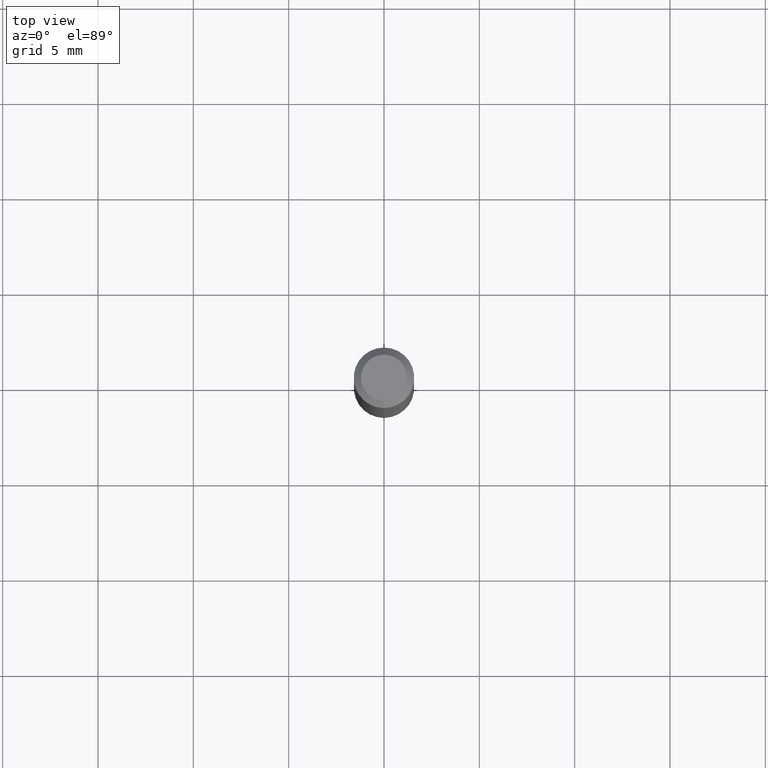
[diagram: clean part render]
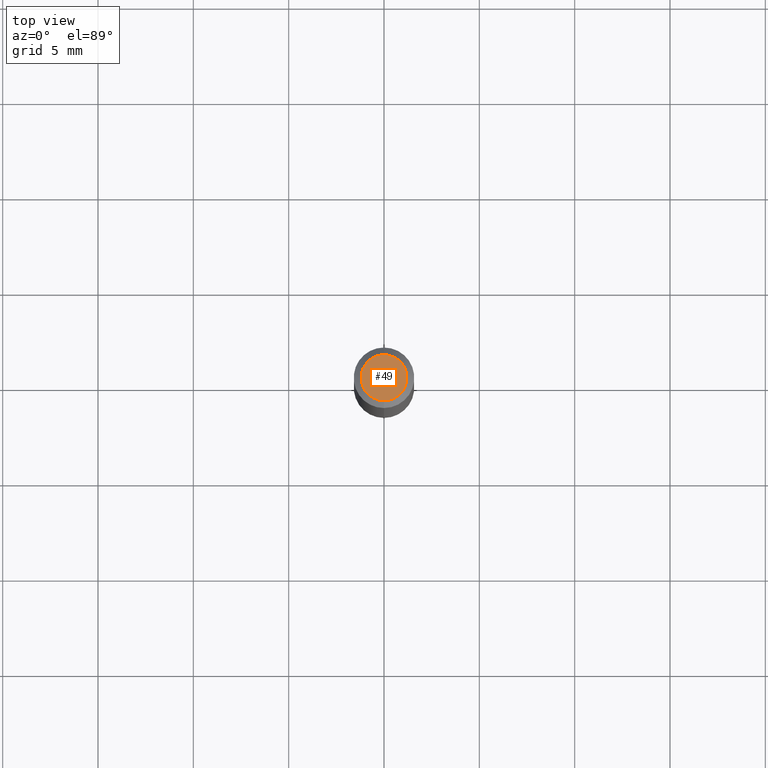
[diagram: same view with one face highlighted and labeled with its STEP entity id]
A machine part, top view. The second image highlights one B-rep face of the part: STEP entity #49.
In plain terms, the highlighted planar face has unit normal (0, -0, -1).
Its self-contained STEP definition (entity closure, byte-faithful):
#5 = VERTEX_POINT ( 'NONE', #261 ) ;
#49 = ADVANCED_FACE ( 'NONE', ( #200 ), #153, .F. ) ;
#84 = CARTESIAN_POINT ( 'NONE',  ( 2.167028059228140305E-46, -3.093903484196739978E-32, -8.861346643635572153E-18 ) ) ;
#135 = EDGE_CURVE ( 'NONE', #223, #5, #382, .T. ) ;
#138 = AXIS2_PLACEMENT_3D ( 'NONE', #426, #235, #391 ) ;
#148 = EDGE_CURVE ( 'NONE', #5, #223, #447, .T. ) ;
#153 = PLANE ( 'NONE',  #367 ) ;
#164 = AXIS2_PLACEMENT_3D ( 'NONE', #84, #241, #246 ) ;
#165 = ORIENTED_EDGE ( 'NONE', *, *, #148, .T. ) ;
#180 = EDGE_LOOP ( 'NONE', ( #318, #165 ) ) ;
#189 = CARTESIAN_POINT ( 'NONE',  ( 3.316907271900976096E-16, 0.04749999999999999362, -1.702750098650627183E-16 ) ) ;
#200 = FACE_OUTER_BOUND ( 'NONE', #180, .T. ) ;
#223 = VERTEX_POINT ( 'NONE', #451 ) ;
#235 = DIRECTION ( 'NONE',  ( -2.445483904847070703E-29, 3.491459716699893676E-15, 1.000000000000000000 ) ) ;
#241 = DIRECTION ( 'NONE',  ( -2.445483904847070703E-29, 3.491459716699893676E-15, 1.000000000000000000 ) ) ;
#246 = DIRECTION ( 'NONE',  ( -6.982962677686266711E-15, -1.000000000000000000, 3.491459716699894071E-15 ) ) ;
#261 = CARTESIAN_POINT ( 'NONE',  ( -3.773273898774340269E-16, -0.04749999999999999362, 1.569829898996093817E-16 ) ) ;
#318 = ORIENTED_EDGE ( 'NONE', *, *, #135, .T. ) ;
#367 = AXIS2_PLACEMENT_3D ( 'NONE', #189, #396, #395 ) ;
#382 = CIRCLE ( 'NONE', #164, 0.04749999999999999362 ) ;
#391 = DIRECTION ( 'NONE',  ( -6.982962677686266711E-15, -1.000000000000000000, 3.491459716699894071E-15 ) ) ;
#395 = DIRECTION ( 'NONE',  ( 6.982962677686265922E-15, 1.000000000000000000, -3.491459716699893676E-15 ) ) ;
#396 = DIRECTION ( 'NONE',  ( 2.445483904847070142E-29, -3.491459716699893676E-15, -1.000000000000000000 ) ) ;
#426 = CARTESIAN_POINT ( 'NONE',  ( 2.167028059228140305E-46, -3.093903484196739978E-32, -8.861346643635572153E-18 ) ) ;
#447 = CIRCLE ( 'NONE', #138, 0.04749999999999999362 ) ;
#451 = CARTESIAN_POINT ( 'NONE',  ( 3.840629472727447874E-16, 0.04749999999999999362, -1.747056831868805136E-16 ) ) ;